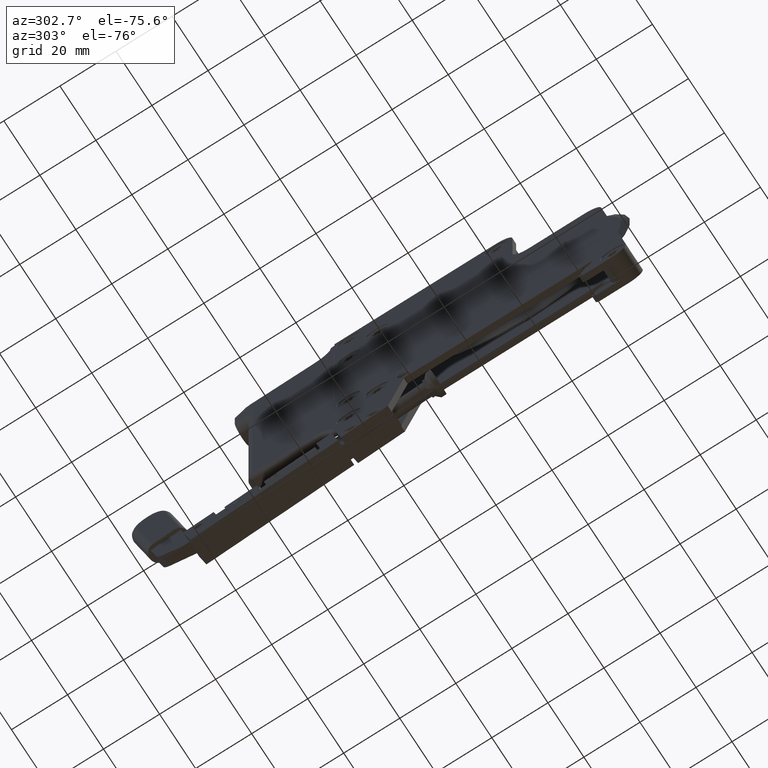
[diagram: clean part render]
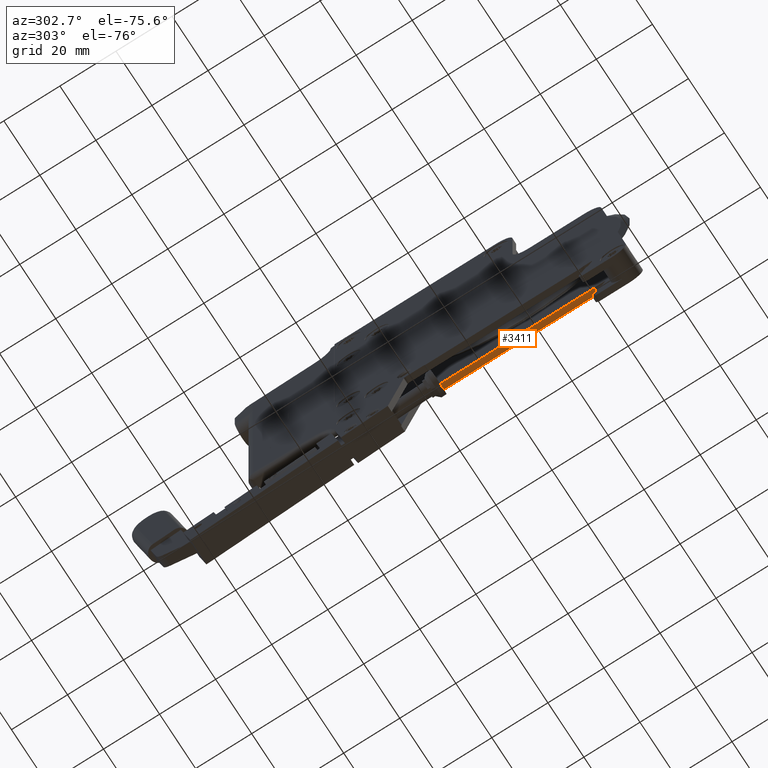
[diagram: same view with one face highlighted and labeled with its STEP entity id]
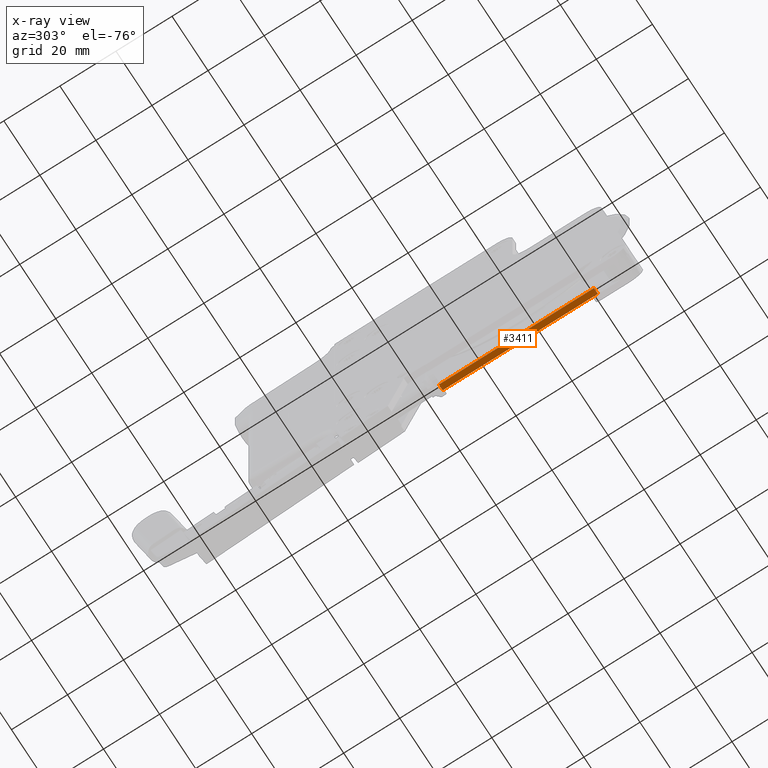
[diagram: x-ray of the same camera — body ghosted, the highlighted face saturated]
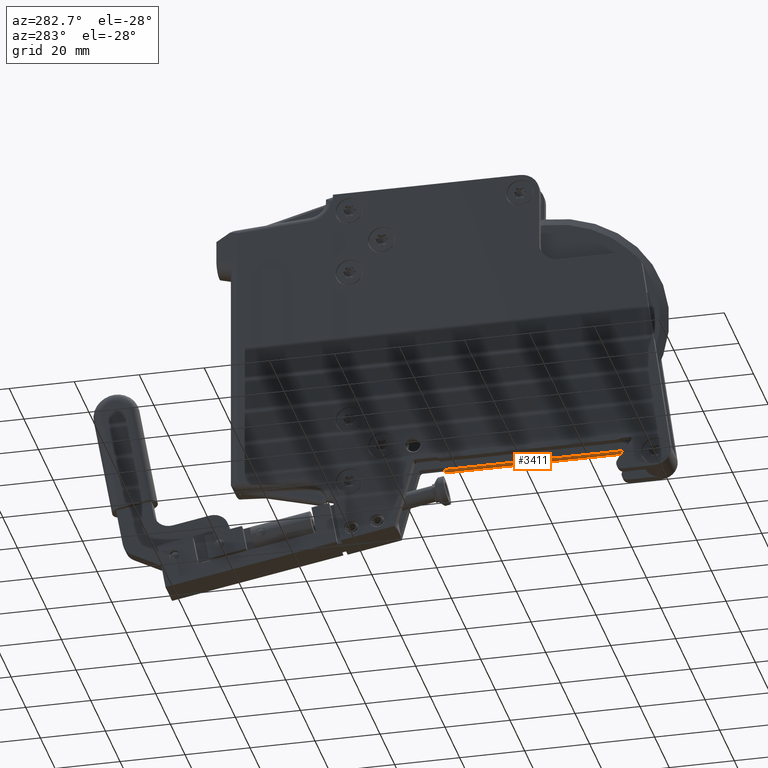
[diagram: same view with one face highlighted and labeled with its STEP entity id]
A machine part, auxiliary view. The second image highlights one B-rep face of the part: STEP entity #3411.
The next image is the same camera in x-ray: the body ghosted, the highlighted face saturated — about 0% of this face is hidden behind the body in this view.
A second angle (auxiliary view) of the same face is appended — the face is thin or edge-on in the first view.
In plain terms, the highlighted planar face has unit normal (0, 0, 1).
Its self-contained STEP definition (entity closure, byte-faithful):
#2581 = LINE ( 'NONE', #29800, #27481 ) ;
#3411 = ADVANCED_FACE ( 'NONE', ( #37713 ), #25604, .F. ) ;
#5482 = EDGE_CURVE ( 'NONE', #15766, #8042, #11181, .T. ) ;
#5851 = ORIENTED_EDGE ( 'NONE', *, *, #37757, .F. ) ;
#5898 = VECTOR ( 'NONE', #20138, 39.37007874015748143 ) ;
#7404 = CARTESIAN_POINT ( 'NONE',  ( 0.2889763779527562693, -2.202751620756724815, -1.633858267716535195 ) ) ;
#7717 = VECTOR ( 'NONE', #21726, 39.37007874015748143 ) ;
#8042 = VERTEX_POINT ( 'NONE', #28019 ) ;
#8224 = DIRECTION ( 'NONE',  ( -1.000000000000000000, -0.000000000000000000, -0.000000000000000000 ) ) ;
#8397 = VECTOR ( 'NONE', #8224, 39.37007874015748143 ) ;
#8582 = LINE ( 'NONE', #23097, #5898 ) ;
#8850 = EDGE_CURVE ( 'NONE', #13885, #8042, #9788, .T. ) ;
#9788 = LINE ( 'NONE', #7404, #7717 ) ;
#11181 = LINE ( 'NONE', #11372, #8397 ) ;
#11372 = CARTESIAN_POINT ( 'NONE',  ( 0.3732283464566932829, -0.02267388074823777078, -1.633858267716535195 ) ) ;
#13080 = CARTESIAN_POINT ( 'NONE',  ( 0.3732283464566932829, -2.202751620756724815, -1.633858267716535195 ) ) ;
#13720 = ORIENTED_EDGE ( 'NONE', *, *, #5482, .F. ) ;
#13860 = DIRECTION ( 'NONE',  ( 0.000000000000000000, 0.000000000000000000, 1.000000000000000000 ) ) ;
#13885 = VERTEX_POINT ( 'NONE', #28813 ) ;
#15064 = AXIS2_PLACEMENT_3D ( 'NONE', #13080, #13860, #22694 ) ;
#15766 = VERTEX_POINT ( 'NONE', #27878 ) ;
#20138 = DIRECTION ( 'NONE',  ( -1.000000000000000000, -0.000000000000000000, -0.000000000000000000 ) ) ;
#21726 = DIRECTION ( 'NONE',  ( 0.000000000000000000, 1.000000000000000000, 0.000000000000000000 ) ) ;
#22533 = CARTESIAN_POINT ( 'NONE',  ( 0.3732283464566932829, -2.202751620756724815, -1.633858267716535195 ) ) ;
#22694 = DIRECTION ( 'NONE',  ( 1.000000000000000000, 0.000000000000000000, -0.000000000000000000 ) ) ;
#23097 = CARTESIAN_POINT ( 'NONE',  ( 0.3732283464566932829, -2.202751620756724815, -1.633858267716535195 ) ) ;
#25604 = PLANE ( 'NONE',  #15064 ) ;
#27481 = VECTOR ( 'NONE', #29604, 39.37007874015748143 ) ;
#27878 = CARTESIAN_POINT ( 'NONE',  ( 0.3732283464566932829, -0.02267388074823777078, -1.633858267716535195 ) ) ;
#27922 = ORIENTED_EDGE ( 'NONE', *, *, #33548, .T. ) ;
#28019 = CARTESIAN_POINT ( 'NONE',  ( 0.2889763779527562693, -0.02267388074823777078, -1.633858267716535195 ) ) ;
#28813 = CARTESIAN_POINT ( 'NONE',  ( 0.2889763779527562693, -2.202751620756724815, -1.633858267716535195 ) ) ;
#29604 = DIRECTION ( 'NONE',  ( 0.000000000000000000, 1.000000000000000000, 0.000000000000000000 ) ) ;
#29778 = EDGE_LOOP ( 'NONE', ( #34840, #13720, #5851, #27922 ) ) ;
#29800 = CARTESIAN_POINT ( 'NONE',  ( 0.3732283464566932829, -2.202751620756724815, -1.633858267716535195 ) ) ;
#33548 = EDGE_CURVE ( 'NONE', #38630, #13885, #8582, .T. ) ;
#34840 = ORIENTED_EDGE ( 'NONE', *, *, #8850, .T. ) ;
#37713 = FACE_OUTER_BOUND ( 'NONE', #29778, .T. ) ;
#37757 = EDGE_CURVE ( 'NONE', #38630, #15766, #2581, .T. ) ;
#38630 = VERTEX_POINT ( 'NONE', #22533 ) ;